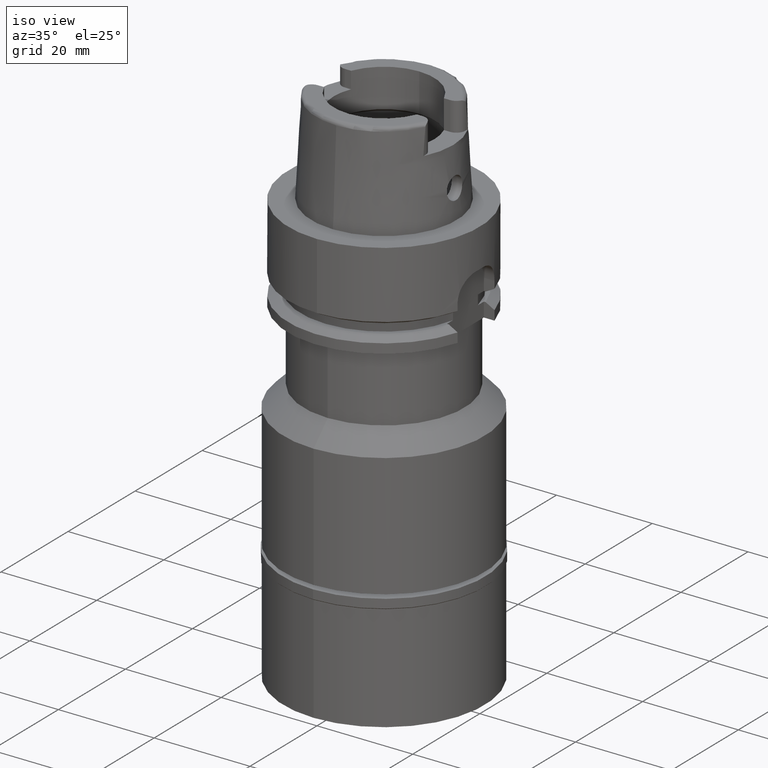
[diagram: clean part render]
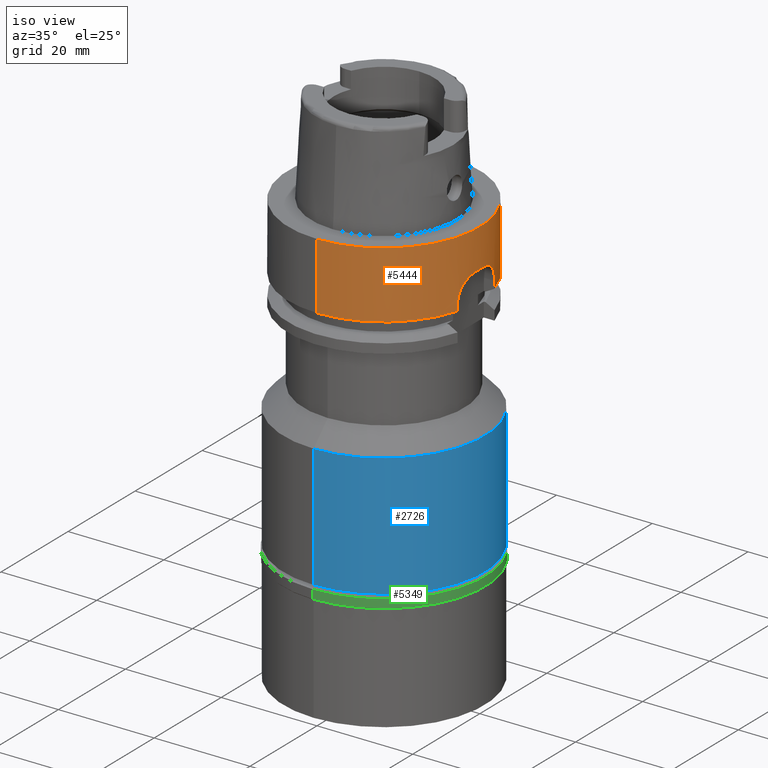
[diagram: same view with three faces highlighted in distinct colors, each labeled with its STEP entity id]
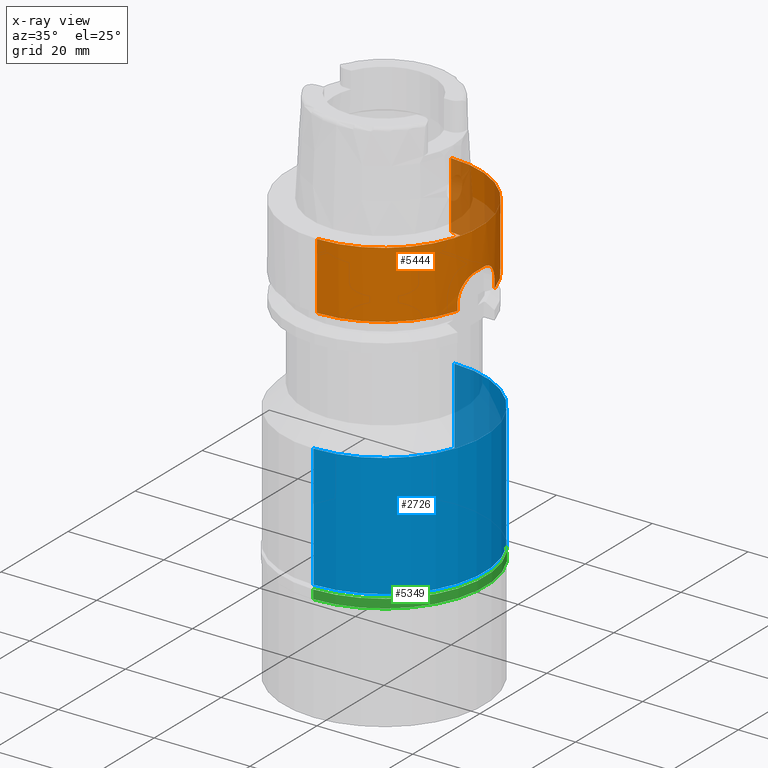
[diagram: x-ray of the same camera — body ghosted, the three highlighted faces saturated]
A machine part, iso view with three faces highlighted in distinct colors.
The next image is the same camera in x-ray (body ghosted, the three faces saturated) — at least one of them is partly hidden behind the body in this view.
Their STEP definitions:

[orange] entity #5444 — the highlighted cylindrical surface (partial cylindrical patch) has radius 20 mm, axis along (0, 0, -1).
#20 = ORIENTED_EDGE ( 'NONE', *, *, #4726, .T. ) ;
#23 = CARTESIAN_POINT ( 'NONE',  ( 19.63064394760038667, -3.824976937558564494, -8.995569033277099891 ) ) ;
#104 = CARTESIAN_POINT ( 'NONE',  ( 19.56078668876510562, -4.168450488739759763, -9.304543760809538711 ) ) ;
#129 = CARTESIAN_POINT ( 'NONE',  ( 19.52053442687796192, 4.353765221726480839, -9.499310411724806613 ) ) ;
#162 = CARTESIAN_POINT ( 'NONE',  ( 19.22888452303000051, -5.499999999998999911, -13.97927405783999966 ) ) ;
#173 = CARTESIAN_POINT ( 'NONE',  ( 19.22888455220999759, 5.499999897977000174, -13.97927491279000023 ) ) ;
#187 = CARTESIAN_POINT ( 'NONE',  ( 19.28663469832160260, 5.295105913696593447, -11.15552064463064141 ) ) ;
#208 = LINE ( 'NONE', #2221, #5154 ) ;
#216 = CARTESIAN_POINT ( 'NONE',  ( 19.50142593040706274, 4.439542253001699024, -9.597059118687226942 ) ) ;
#243 = ORIENTED_EDGE ( 'NONE', *, *, #4954, .T. ) ;
#246 = CARTESIAN_POINT ( 'NONE',  ( 19.22888452303000051, -5.500000000000000000, -12.50000000000000000 ) ) ;
#369 = EDGE_LOOP ( 'NONE', ( #243, #4584, #5180, #1308, #2807, #593, #20, #1997, #2259, #5119 ) ) ;
#407 = CARTESIAN_POINT ( 'NONE',  ( 19.73895532437406430, -3.221284057039203397, -8.585652795197548315 ) ) ;
#419 = VERTEX_POINT ( 'NONE', #173 ) ;
#434 = CARTESIAN_POINT ( 'NONE',  ( 19.56731345558588586, -4.137688151839789441, -9.274255797029949733 ) ) ;
#463 = CARTESIAN_POINT ( 'NONE',  ( 19.33346370639426226, -5.120735699993245404, -10.69140906420430959 ) ) ;
#493 = VERTEX_POINT ( 'NONE', #5435 ) ;
#500 = B_SPLINE_CURVE_WITH_KNOTS ( 'NONE', 3,
 ( #2772, #2352, #1941, #4040, #1311, #934, #521, #5077, #1761, #4259, #3778, #3374, #4639, #1704, #4225, #407, #3811, #1282, #906, #5130, #3456, #5100, #4721, #1792, #2623, #5449, #4198, #3401, #23, #1338, #2969, #5051, #3035, #434, #4662, #104, #3483, #4312, #1256, #1673, #5157, #876, #2567, #2205, #3006, #463, #849, #3898, #2947, #1364, #3061, #2535, #2122, #820 ),
 .UNSPECIFIED., .F., .F.,
 ( 4, 2, 2, 1, 1, 1, 2, 2, 2, 2, 1, 1, 1, 1, 1, 2, 2, 2, 2, 2, 1, 1, 1, 2, 2, 2, 2, 2, 1, 1, 1, 2, 2, 4 ),
 ( 0.0000000000000000000, 0.1249999999996497801, 0.1874999999994746147, 0.2187499999993869626, 0.2343749999993431088, 0.2421874999993213207, 0.2460937499993104127, 0.2499999999992995325, 0.3124999999991240340, 0.3437499999990363819, 0.3593749999989926946, 0.3671874999989708233, 0.3710937499989597210, 0.3730468749989540034, 0.3740234374989512833, 0.3745117187489498400, 0.3749999999989483412, 0.4374999999990539790, 0.4687499999991068256, 0.4843749999991334154, 0.4921874999991467936, 0.4960937499991536215, 0.4980468749991569521, 0.4990234374991585065, 0.4999999999991601163, 0.6249999999993552935, 0.6874999999994531041, 0.7187499999995017319, 0.7343749999995256017, 0.7421874999995374811, 0.7460937499995439204, 0.7480468749995474731, 0.7499999999995511368, 1.000000000000000000 ),
 .UNSPECIFIED. ) ;
#521 = CARTESIAN_POINT ( 'NONE',  ( 19.84851072774394964, -2.457405216439478846, -8.241312961659630787 ) ) ;
#572 = CARTESIAN_POINT ( 'NONE',  ( 19.31465255680291904, 5.191230033021059675, -10.86163901158592004 ) ) ;
#593 = ORIENTED_EDGE ( 'NONE', *, *, #3031, .T. ) ;
#597 = CARTESIAN_POINT ( 'NONE',  ( 19.73156136722484888, 3.271312546290442214, -8.612418166209161896 ) ) ;
#624 = CARTESIAN_POINT ( 'NONE',  ( 19.31936919709609413, 5.173565336899266676, -10.81733093384379174 ) ) ;
#646 = DIRECTION ( 'NONE',  ( 0.9614442261514726251, 0.2749999999999924727, 0.0000000000000000000 ) ) ;
#682 = CARTESIAN_POINT ( 'NONE',  ( 19.22888455220999759, 5.499999897977000174, -13.97927491279000023 ) ) ;
#753 = AXIS2_PLACEMENT_3D ( 'NONE', #1921, #1141, #2408 ) ;
#755 = CARTESIAN_POINT ( 'NONE',  ( 19.89318047508240284, 2.146238498718757270, -8.101944124081882137 ) ) ;
#820 = CARTESIAN_POINT ( 'NONE',  ( 19.22888452303000051, -5.500000000000000000, -12.50000000000000000 ) ) ;
#849 = CARTESIAN_POINT ( 'NONE',  ( 19.32817306023310877, -5.140566403616212199, -10.73759747572987422 ) ) ;
#876 = CARTESIAN_POINT ( 'NONE',  ( 19.37871462058813066, -4.949342529038438521, -10.33909566509531430 ) ) ;
#906 = CARTESIAN_POINT ( 'NONE',  ( 19.70286275662721565, -3.434780831019203173, -8.715480651281001911 ) ) ;
#934 = CARTESIAN_POINT ( 'NONE',  ( 19.86155045042391265, -2.348188506589994784, -8.206034764496743961 ) ) ;
#986 = CARTESIAN_POINT ( 'NONE',  ( 19.23658454640221294, 5.474660854080744876, -11.94154979018197338 ) ) ;
#1012 = CARTESIAN_POINT ( 'NONE',  ( 19.45402416962919645, 4.645537953001118048, -9.856678750557277269 ) ) ;
#1064 = CARTESIAN_POINT ( 'NONE',  ( 19.25968461651885733, 5.392910415939853763, -11.51336319929812468 ) ) ;
#1066 = CYLINDRICAL_SURFACE ( 'NONE', #753, 20.00000000000000000 ) ;
#1096 = LINE ( 'NONE', #682, #1492 ) ;
#1141 = DIRECTION ( 'NONE',  ( 0.0000000000000000000, 0.0000000000000000000, -1.000000000000000000 ) ) ;
#1256 = CARTESIAN_POINT ( 'NONE',  ( 19.50243034717293966, -4.441498029874455078, -9.577354834586829568 ) ) ;
#1282 = CARTESIAN_POINT ( 'NONE',  ( 19.71332632635418136, -3.374393332475727814, -8.677022816150625317 ) ) ;
#1308 = ORIENTED_EDGE ( 'NONE', *, *, #2606, .T. ) ;
#1311 = CARTESIAN_POINT ( 'NONE',  ( 19.88640778754138694, -2.130037156349979810, -8.141558214531716686 ) ) ;
#1338 = CARTESIAN_POINT ( 'NONE',  ( 19.60630030819194403, -3.947932666105484323, -9.099621231292864820 ) ) ;
#1364 = CARTESIAN_POINT ( 'NONE',  ( 19.32381787218638536, -5.156912517073449997, -10.77660492449453855 ) ) ;
#1415 = CARTESIAN_POINT ( 'NONE',  ( 19.30823085762336078, 5.215214264575658731, -10.92377104178881808 ) ) ;
#1451 = CARTESIAN_POINT ( 'NONE',  ( 0.0000000000000000000, 1.532339307432999848E-14, -8.000000000000000000 ) ) ;
#1473 = CARTESIAN_POINT ( 'NONE',  ( 19.79266068958955671, 2.872814981997105388, -8.408059249508253785 ) ) ;
#1492 = VECTOR ( 'NONE', #2363, 1000.000000000000227 ) ;
#1499 = CARTESIAN_POINT ( 'NONE',  ( 19.31794236171047885, 5.178913504021632974, -10.83061647130119631 ) ) ;
#1568 = VERTEX_POINT ( 'NONE', #4167 ) ;
#1600 = CARTESIAN_POINT ( 'NONE',  ( 19.97498435543999662, 1.000000000000000000, -8.000000000000000000 ) ) ;
#1673 = CARTESIAN_POINT ( 'NONE',  ( 19.45499076636983560, -4.644027424695566175, -9.843214420856865488 ) ) ;
#1704 = CARTESIAN_POINT ( 'NONE',  ( 19.78050042100995398, -2.957517143739752719, -8.445362508893781595 ) ) ;
#1749 = VERTEX_POINT ( 'NONE', #246 ) ;
#1761 = CARTESIAN_POINT ( 'NONE',  ( 19.82381985980778794, -2.648343888950041691, -8.312682143098061971 ) ) ;
#1792 = CARTESIAN_POINT ( 'NONE',  ( 19.69255577653850509, -3.493325089396456029, -8.753891125187561073 ) ) ;
#1810 = EDGE_CURVE ( 'NONE', #419, #2360, #1096, .T. ) ;
#1815 = CARTESIAN_POINT ( 'NONE',  ( 19.54706758414766909, 4.232361528598486800, -9.369190671418325067 ) ) ;
#1840 = CARTESIAN_POINT ( 'NONE',  ( 19.34380695559619667, 5.081862356126861435, -10.59253311243774753 ) ) ;
#1858 = AXIS2_PLACEMENT_3D ( 'NONE', #3693, #3307, #4568 ) ;
#1898 = CARTESIAN_POINT ( 'NONE',  ( 19.55047447292268714, 4.216571673563181299, -9.352970484356946557 ) ) ;
#1921 = CARTESIAN_POINT ( 'NONE',  ( 0.0000000000000000000, 1.532339307432999848E-14, 25.12500000000000000 ) ) ;
#1941 = CARTESIAN_POINT ( 'NONE',  ( 19.94128767625852916, -1.553696544724118001, -8.024613320675758388 ) ) ;
#1997 = ORIENTED_EDGE ( 'NONE', *, *, #3581, .T. ) ;
#2120 = AXIS2_PLACEMENT_3D ( 'NONE', #5376, #4976, #5401 ) ;
#2122 = CARTESIAN_POINT ( 'NONE',  ( 19.22888452303000051, -5.500000000000000000, -11.94434606110780983 ) ) ;
#2205 = CARTESIAN_POINT ( 'NONE',  ( 19.34832780429083954, -5.064939329106977084, -10.56870436402436830 ) ) ;
#2221 = CARTESIAN_POINT ( 'NONE',  ( 0.0000000000000000000, -20.00000000000000000, 0.0000000000000000000 ) ) ;
#2228 = CARTESIAN_POINT ( 'NONE',  ( 0.0000000000000000000, -20.00000000000000000, -13.97927405783999966 ) ) ;
#2255 = CARTESIAN_POINT ( 'NONE',  ( 19.32032418046355104, 5.169984398367908796, -10.80847615301045472 ) ) ;
#2257 = CIRCLE ( 'NONE', #3494, 20.00000000000000355 ) ;
#2259 = ORIENTED_EDGE ( 'NONE', *, *, #4892, .F. ) ;
#2281 = CARTESIAN_POINT ( 'NONE',  ( 19.71012153021938929, 3.397762175207944768, -8.689193312161622273 ) ) ;
#2290 = LINE ( 'NONE', #4862, #4638 ) ;
#2293 = VERTEX_POINT ( 'NONE', #2228 ) ;
#2310 = CARTESIAN_POINT ( 'NONE',  ( 19.54198105163120047, 4.255882633056253361, -9.393536465122442891 ) ) ;
#2344 = DIRECTION ( 'NONE',  ( -9.332677126753392931E-08, -3.262833275317140594E-07, -0.9999999999999423794 ) ) ;
#2352 = CARTESIAN_POINT ( 'NONE',  ( 19.96139497116244499, -1.271447738300869545, -7.999999999999998224 ) ) ;
#2359 = EDGE_CURVE ( 'NONE', #2360, #1568, #3398, .T. ) ;
#2360 = VERTEX_POINT ( 'NONE', #5331 ) ;
#2363 = DIRECTION ( 'NONE',  ( -1.972623627107989467E-08, 6.896812003880961806E-08, 0.9999999999999973355 ) ) ;
#2408 = DIRECTION ( 'NONE',  ( 0.0000000000000000000, -1.000000000000000000, 0.0000000000000000000 ) ) ;
#2535 = CARTESIAN_POINT ( 'NONE',  ( 19.26029251281642019, -5.395656231037307293, -11.35498875609509462 ) ) ;
#2567 = CARTESIAN_POINT ( 'NONE',  ( 19.35553694553548709, -5.037750810770325494, -10.51234513076490629 ) ) ;
#2606 = EDGE_CURVE ( 'NONE', #419, #3538, #3629, .T. ) ;
#2623 = CARTESIAN_POINT ( 'NONE',  ( 19.69218632689502257, -3.495406580190014267, -8.755277578795496396 ) ) ;
#2690 = EDGE_CURVE ( 'NONE', #2917, #1749, #500, .T. ) ;
#2701 = CARTESIAN_POINT ( 'NONE',  ( 19.57622255506896991, 4.096717591863995089, -9.231638431952672974 ) ) ;
#2749 = CARTESIAN_POINT ( 'NONE',  ( 0.0000000000000000000, 1.047199923064999921E-14, -13.97927405783999966 ) ) ;
#2753 = CARTESIAN_POINT ( 'NONE',  ( 19.53027908028184356, 4.309626506834646875, -9.450435772372642873 ) ) ;
#2772 = CARTESIAN_POINT ( 'NONE',  ( 19.97498435543999662, -1.000000000000000000, -8.000000000000000000 ) ) ;
#2807 = ORIENTED_EDGE ( 'NONE', *, *, #3515, .F. ) ;
#2917 = VERTEX_POINT ( 'NONE', #4831 ) ;
#2947 = CARTESIAN_POINT ( 'NONE',  ( 19.32453330765275368, -5.154225458029572771, -10.77013783649177370 ) ) ;
#2969 = CARTESIAN_POINT ( 'NONE',  ( 19.59755329165284365, -3.991492605970390350, -9.137735594783938708 ) ) ;
#3006 = CARTESIAN_POINT ( 'NONE',  ( 19.33828921808322931, -5.102649160089053559, -10.65089791657264762 ) ) ;
#3031 = EDGE_CURVE ( 'NONE', #493, #4221, #4768, .T. ) ;
#3035 = CARTESIAN_POINT ( 'NONE',  ( 19.57621227050713841, -4.095335981823143179, -9.233376359453187021 ) ) ;
#3061 = CARTESIAN_POINT ( 'NONE',  ( 19.32359924222965830, -5.157733724682834087, -10.77858382672700976 ) ) ;
#3137 = CARTESIAN_POINT ( 'NONE',  ( 19.22888452303000051, 5.500000000000000000, -12.50000000000000000 ) ) ;
#3162 = CARTESIAN_POINT ( 'NONE',  ( 19.80244722007730118, 2.804145672532197153, -8.377322053008374070 ) ) ;
#3174 = CIRCLE ( 'NONE', #2120, 20.00000000000000000 ) ;
#3297 = LINE ( 'NONE', #3683, #4855 ) ;
#3307 = DIRECTION ( 'NONE',  ( 0.0000000000000000000, 0.0000000000000000000, -1.000000000000000000 ) ) ;
#3321 = DIRECTION ( 'NONE',  ( 0.0000000000000000000, -4.574547001069000145E-14, -1.000000000000000000 ) ) ;
#3374 = CARTESIAN_POINT ( 'NONE',  ( 19.81625301537056316, -2.704420886943549540, -8.335265361555626029 ) ) ;
#3398 = B_SPLINE_CURVE_WITH_KNOTS ( 'NONE', 3,
 ( #3137, #4773, #986, #1064, #4361, #187, #4414, #1415, #572, #1499, #624, #2255, #4442, #1840, #4798, #3996, #1012, #3921, #216, #129, #2753, #2310, #1815, #1898, #5178, #2701, #3586, #3530, #4389, #2281, #597, #3966, #5261, #1473, #3162, #4853, #755, #4983, #1600 ),
 .UNSPECIFIED., .F., .F.,
 ( 4, 2, 2, 1, 1, 1, 1, 2, 2, 2, 2, 2, 1, 1, 2, 2, 2, 2, 2, 1, 2, 2, 4 ),
 ( 0.0000000000000000000, 0.1250000000000028033, 0.1875000000000046074, 0.2187500000000054956, 0.2343750000000059952, 0.2421875000000058842, 0.2460937500000061340, 0.2480468750000065226, 0.2500000000000069389, 0.3750000000000014433, 0.4374999999999991673, 0.4687499999999979461, 0.4843749999999976130, 0.4921874999999971134, 0.4960937499999968359, 0.4999999999999966138, 0.5624999999999973355, 0.6249999999999978906, 0.6874999999999985567, 0.7187499999999987788, 0.7343749999999987788, 0.7499999999999987788, 1.000000000000000000 ),
 .UNSPECIFIED. ) ;
#3401 = CARTESIAN_POINT ( 'NONE',  ( 19.64434316026089533, -3.753364497583749237, -8.939880111897672066 ) ) ;
#3456 = CARTESIAN_POINT ( 'NONE',  ( 19.69486462528723791, -3.480290084616885160, -8.745241877268689734 ) ) ;
#3483 = CARTESIAN_POINT ( 'NONE',  ( 19.55946601776645721, -4.174647431070566128, -9.310700270502394460 ) ) ;
#3494 = AXIS2_PLACEMENT_3D ( 'NONE', #1451, #4031, #5271 ) ;
#3515 = EDGE_CURVE ( 'NONE', #493, #3538, #3297, .T. ) ;
#3530 = CARTESIAN_POINT ( 'NONE',  ( 19.64322700995584725, 3.760156515082951678, -8.942840572103223806 ) ) ;
#3538 = VERTEX_POINT ( 'NONE', #4614 ) ;
#3581 = EDGE_CURVE ( 'NONE', #2293, #3815, #3174, .T. ) ;
#3586 = CARTESIAN_POINT ( 'NONE',  ( 19.59855040313644636, 3.987633760328653132, -9.131633675299811514 ) ) ;
#3629 = CIRCLE ( 'NONE', #4778, 20.00000000000000355 ) ;
#3683 = CARTESIAN_POINT ( 'NONE',  ( 0.0000000000000000000, 20.00000000000000000, 0.0000000000000000000 ) ) ;
#3693 = CARTESIAN_POINT ( 'NONE',  ( 0.0000000000000000000, 1.532339307432999848E-14, 0.0000000000000000000 ) ) ;
#3778 = CARTESIAN_POINT ( 'NONE',  ( 19.81770557128518817, -2.693738785038907846, -8.330906002294803159 ) ) ;
#3811 = CARTESIAN_POINT ( 'NONE',  ( 19.72200033329774982, -3.323108481411421344, -8.645817699038531146 ) ) ;
#3815 = VERTEX_POINT ( 'NONE', #162 ) ;
#3898 = CARTESIAN_POINT ( 'NONE',  ( 19.32561251652150247, -5.150173324775861872, -10.76041730665948393 ) ) ;
#3921 = CARTESIAN_POINT ( 'NONE',  ( 19.48919467987568410, 4.493392015007685814, -9.662221682704531744 ) ) ;
#3966 = CARTESIAN_POINT ( 'NONE',  ( 19.76260105711506299, 3.074924970345644049, -8.506226763225614107 ) ) ;
#3996 = CARTESIAN_POINT ( 'NONE',  ( 19.43260815126173924, 4.734422932862177191, -9.984905843007744863 ) ) ;
#4031 = DIRECTION ( 'NONE',  ( 0.0000000000000000000, 0.0000000000000000000, 1.000000000000000000 ) ) ;
#4040 = CARTESIAN_POINT ( 'NONE',  ( 19.90134986796311267, -1.984987916222135995, -8.106685163435878749 ) ) ;
#4167 = CARTESIAN_POINT ( 'NONE',  ( 19.97498435543999662, 1.000000000000000000, -8.000000000000000000 ) ) ;
#4198 = CARTESIAN_POINT ( 'NONE',  ( 19.67785115740708690, -3.575650279462502468, -8.807046664961740490 ) ) ;
#4221 = VERTEX_POINT ( 'NONE', #5234 ) ;
#4225 = CARTESIAN_POINT ( 'NONE',  ( 19.74973462134385471, -3.154397349896456593, -8.548536765090823053 ) ) ;
#4259 = CARTESIAN_POINT ( 'NONE',  ( 19.82015892487074282, -2.675583637691062666, -8.323576253928663959 ) ) ;
#4312 = CARTESIAN_POINT ( 'NONE',  ( 19.55857315053914292, -4.178829359049777814, -9.314870145129603429 ) ) ;
#4361 = CARTESIAN_POINT ( 'NONE',  ( 19.26930964573411487, 5.358382645654690357, -11.37007128472655459 ) ) ;
#4389 = CARTESIAN_POINT ( 'NONE',  ( 19.66574843538452555, 3.640817669666359002, -8.853413500750383136 ) ) ;
#4414 = CARTESIAN_POINT ( 'NONE',  ( 19.29601910180648616, 5.260598097705189602, -11.04834435503104295 ) ) ;
#4436 = DIRECTION ( 'NONE',  ( 0.0000000000000000000, 0.0000000000000000000, 1.000000000000000000 ) ) ;
#4442 = CARTESIAN_POINT ( 'NONE',  ( 19.32093289487000831, 5.167700803224152928, -10.80286057460964955 ) ) ;
#4568 = DIRECTION ( 'NONE',  ( 0.0000000000000000000, 1.000000000000000000, 0.0000000000000000000 ) ) ;
#4584 = ORIENTED_EDGE ( 'NONE', *, *, #2359, .F. ) ;
#4614 = CARTESIAN_POINT ( 'NONE',  ( 0.0000000000000000000, 20.00000000000000000, -13.97927405783999966 ) ) ;
#4638 = VECTOR ( 'NONE', #2344, 1000.000000000000114 ) ;
#4639 = CARTESIAN_POINT ( 'NONE',  ( 19.79891483246299089, -2.831338609659221461, -8.387472549054711735 ) ) ;
#4662 = CARTESIAN_POINT ( 'NONE',  ( 19.56276028350445628, -4.159176365763300964, -9.295357038161338181 ) ) ;
#4721 = CARTESIAN_POINT ( 'NONE',  ( 19.69294124567170812, -3.491151711779311828, -8.752445483750591393 ) ) ;
#4726 = EDGE_CURVE ( 'NONE', #4221, #2293, #208, .T. ) ;
#4768 = CIRCLE ( 'NONE', #1858, 20.00000000000000000 ) ;
#4773 = CARTESIAN_POINT ( 'NONE',  ( 19.22888452303000406, 5.500000000000000888, -12.22465747466917385 ) ) ;
#4778 = AXIS2_PLACEMENT_3D ( 'NONE', #2749, #4436, #646 ) ;
#4798 = CARTESIAN_POINT ( 'NONE',  ( 19.37445306154994640, 4.968718896072298996, -10.35856978538809514 ) ) ;
#4831 = CARTESIAN_POINT ( 'NONE',  ( 19.97498435543999662, -1.000000000000000000, -8.000000000000000000 ) ) ;
#4844 = DIRECTION ( 'NONE',  ( 0.0000000000000000000, 4.549132851063000272E-14, -1.000000000000000000 ) ) ;
#4853 = CARTESIAN_POINT ( 'NONE',  ( 19.80702582156784430, 2.771501254339705511, -8.363168820820975569 ) ) ;
#4854 = FACE_OUTER_BOUND ( 'NONE', #369, .T. ) ;
#4855 = VECTOR ( 'NONE', #3321, 1000.000000000000000 ) ;
#4862 = CARTESIAN_POINT ( 'NONE',  ( 19.22888452303000051, -5.500000000000000000, -12.50000000000000000 ) ) ;
#4892 = EDGE_CURVE ( 'NONE', #1749, #3815, #2290, .T. ) ;
#4954 = EDGE_CURVE ( 'NONE', #2917, #1568, #2257, .T. ) ;
#4976 = DIRECTION ( 'NONE',  ( 0.0000000000000000000, 0.0000000000000000000, 1.000000000000000000 ) ) ;
#4983 = CARTESIAN_POINT ( 'NONE',  ( 19.94747734610812628, 1.549452080971274626, -7.999999999999998224 ) ) ;
#5051 = CARTESIAN_POINT ( 'NONE',  ( 19.58348406173978873, -4.060166917261001096, -9.200554452026691976 ) ) ;
#5077 = CARTESIAN_POINT ( 'NONE',  ( 19.83222837323853227, -2.584740915280918205, -8.287963799882501092 ) ) ;
#5100 = CARTESIAN_POINT ( 'NONE',  ( 19.69351906556017440, -3.487892151936573537, -8.750279404316835041 ) ) ;
#5119 = ORIENTED_EDGE ( 'NONE', *, *, #2690, .F. ) ;
#5130 = CARTESIAN_POINT ( 'NONE',  ( 19.69754499802387926, -3.465100448350493245, -8.735233290139477802 ) ) ;
#5154 = VECTOR ( 'NONE', #4844, 1000.000000000000000 ) ;
#5157 = CARTESIAN_POINT ( 'NONE',  ( 19.39623340571485244, -4.881279890931645049, -10.21799917186283224 ) ) ;
#5178 = CARTESIAN_POINT ( 'NONE',  ( 19.55251032529842803, 4.207111571717927490, -9.343337093208633704 ) ) ;
#5180 = ORIENTED_EDGE ( 'NONE', *, *, #1810, .F. ) ;
#5234 = CARTESIAN_POINT ( 'NONE',  ( 0.0000000000000000000, -20.00000000000000000, 0.0000000000000000000 ) ) ;
#5261 = CARTESIAN_POINT ( 'NONE',  ( 19.77784088565566734, 2.975054965745149715, -8.455373366363897247 ) ) ;
#5271 = DIRECTION ( 'NONE',  ( 0.9987492177719088371, -0.04999999999999998890, 0.0000000000000000000 ) ) ;
#5331 = CARTESIAN_POINT ( 'NONE',  ( 19.22888452303000051, 5.500000000000000000, -12.50000000000000000 ) ) ;
#5376 = CARTESIAN_POINT ( 'NONE',  ( 0.0000000000000000000, 1.047199923064999921E-14, -13.97927405783999966 ) ) ;
#5401 = DIRECTION ( 'NONE',  ( 0.0000000000000000000, -1.000000000000000000, 0.0000000000000000000 ) ) ;
#5435 = CARTESIAN_POINT ( 'NONE',  ( 0.0000000000000000000, 20.00000000000000000, 0.0000000000000000000 ) ) ;
#5444 = ADVANCED_FACE ( 'NONE', ( #4854 ), #1066, .T. ) ;
#5449 = CARTESIAN_POINT ( 'NONE',  ( 19.69007030105741762, -3.507325168322622311, -8.763220307291023303 ) ) ;

[blue] entity #2726 — the highlighted cylindrical surface (partial cylindrical patch) has radius 21 mm, axis along (0, 0, -1).
#73 = CYLINDRICAL_SURFACE ( 'NONE', #2571, 21.00000000000000000 ) ;
#487 = LINE ( 'NONE', #3447, #2983 ) ;
#494 = VECTOR ( 'NONE', #4774, 1000.000000000000000 ) ;
#589 = ORIENTED_EDGE ( 'NONE', *, *, #707, .F. ) ;
#628 = EDGE_LOOP ( 'NONE', ( #2967, #2409, #3312, #589 ) ) ;
#668 = DIRECTION ( 'NONE',  ( 0.0000000000000000000, -1.000000000000000000, 0.0000000000000000000 ) ) ;
#707 = EDGE_CURVE ( 'NONE', #2641, #3263, #487, .T. ) ;
#909 = DIRECTION ( 'NONE',  ( 0.0000000000000000000, 0.0000000000000000000, -1.000000000000000000 ) ) ;
#1039 = DIRECTION ( 'NONE',  ( 0.0000000000000000000, 0.0000000000000000000, -1.000000000000000000 ) ) ;
#1314 = CARTESIAN_POINT ( 'NONE',  ( 0.0000000000000000000, 0.0000000000000000000, -39.19999999999999574 ) ) ;
#1844 = DIRECTION ( 'NONE',  ( 0.0000000000000000000, -1.000000000000000000, 0.0000000000000000000 ) ) ;
#2059 = CARTESIAN_POINT ( 'NONE',  ( 0.0000000000000000000, -21.00000000000000000, -64.90000000000000568 ) ) ;
#2260 = CARTESIAN_POINT ( 'NONE',  ( 0.0000000000000000000, 1.532339307432999848E-14, 25.12500000000000000 ) ) ;
#2299 = AXIS2_PLACEMENT_3D ( 'NONE', #4434, #5323, #668 ) ;
#2409 = ORIENTED_EDGE ( 'NONE', *, *, #5420, .T. ) ;
#2571 = AXIS2_PLACEMENT_3D ( 'NONE', #2260, #1039, #1844 ) ;
#2588 = DIRECTION ( 'NONE',  ( 0.0000000000000000000, 0.0000000000000000000, -1.000000000000000000 ) ) ;
#2641 = VERTEX_POINT ( 'NONE', #2720 ) ;
#2720 = CARTESIAN_POINT ( 'NONE',  ( 0.0000000000000000000, 21.00000000000000000, -39.19999999999999574 ) ) ;
#2726 = ADVANCED_FACE ( 'NONE', ( #3866 ), #73, .T. ) ;
#2754 = LINE ( 'NONE', #3192, #494 ) ;
#2967 = ORIENTED_EDGE ( 'NONE', *, *, #4863, .T. ) ;
#2983 = VECTOR ( 'NONE', #2588, 1000.000000000000000 ) ;
#3192 = CARTESIAN_POINT ( 'NONE',  ( 0.0000000000000000000, -21.00000000000000000, -39.19999999999999574 ) ) ;
#3263 = VERTEX_POINT ( 'NONE', #3520 ) ;
#3312 = ORIENTED_EDGE ( 'NONE', *, *, #3411, .T. ) ;
#3411 = EDGE_CURVE ( 'NONE', #5127, #3263, #3621, .T. ) ;
#3447 = CARTESIAN_POINT ( 'NONE',  ( 0.0000000000000000000, 21.00000000000000000, -39.19999999999999574 ) ) ;
#3520 = CARTESIAN_POINT ( 'NONE',  ( 0.0000000000000000000, 21.00000000000000000, -64.90000000000000568 ) ) ;
#3621 = CIRCLE ( 'NONE', #2299, 21.00000000000000000 ) ;
#3750 = CIRCLE ( 'NONE', #5325, 21.00000000000000000 ) ;
#3866 = FACE_OUTER_BOUND ( 'NONE', #628, .T. ) ;
#3995 = CARTESIAN_POINT ( 'NONE',  ( 0.0000000000000000000, -21.00000000000000000, -39.19999999999999574 ) ) ;
#4222 = VERTEX_POINT ( 'NONE', #3995 ) ;
#4289 = DIRECTION ( 'NONE',  ( 0.0000000000000000000, 1.000000000000000000, 0.0000000000000000000 ) ) ;
#4434 = CARTESIAN_POINT ( 'NONE',  ( 0.0000000000000000000, 1.532339307432999848E-14, -64.90000000000000568 ) ) ;
#4774 = DIRECTION ( 'NONE',  ( 0.0000000000000000000, 0.0000000000000000000, -1.000000000000000000 ) ) ;
#4863 = EDGE_CURVE ( 'NONE', #2641, #4222, #3750, .T. ) ;
#5127 = VERTEX_POINT ( 'NONE', #2059 ) ;
#5323 = DIRECTION ( 'NONE',  ( 0.0000000000000000000, 0.0000000000000000000, 1.000000000000000000 ) ) ;
#5325 = AXIS2_PLACEMENT_3D ( 'NONE', #1314, #909, #4289 ) ;
#5420 = EDGE_CURVE ( 'NONE', #4222, #5127, #2754, .T. ) ;

[green] entity #5349 — the highlighted cylindrical surface (partial cylindrical patch) has radius 21.15 mm, axis along (0, 0, -1).
#398 = AXIS2_PLACEMENT_3D ( 'NONE', #5097, #3057, #930 ) ;
#458 = CYLINDRICAL_SURFACE ( 'NONE', #398, 21.14999999999999858 ) ;
#904 = VERTEX_POINT ( 'NONE', #4016 ) ;
#930 = DIRECTION ( 'NONE',  ( 0.0000000000000000000, -1.000000000000000000, 0.0000000000000000000 ) ) ;
#1022 = DIRECTION ( 'NONE',  ( 0.0000000000000000000, 0.0000000000000000000, 1.000000000000000000 ) ) ;
#1122 = VERTEX_POINT ( 'NONE', #2873 ) ;
#1196 = DIRECTION ( 'NONE',  ( 0.0000000000000000000, 0.0000000000000000000, -1.000000000000000000 ) ) ;
#1304 = DIRECTION ( 'NONE',  ( 0.0000000000000000000, 0.0000000000000000000, -1.000000000000000000 ) ) ;
#1316 = ORIENTED_EDGE ( 'NONE', *, *, #3973, .T. ) ;
#1425 = CARTESIAN_POINT ( 'NONE',  ( 0.0000000000000000000, 0.0000000000000000000, -1.850000000000000089 ) ) ;
#1460 = VECTOR ( 'NONE', #1196, 1000.000000000000000 ) ;
#1671 = AXIS2_PLACEMENT_3D ( 'NONE', #1425, #1022, #5319 ) ;
#1678 = ORIENTED_EDGE ( 'NONE', *, *, #1703, .F. ) ;
#1703 = EDGE_CURVE ( 'NONE', #2704, #5329, #4344, .T. ) ;
#2032 = CARTESIAN_POINT ( 'NONE',  ( 0.0000000000000000000, -21.14999999999999858, 0.0000000000000000000 ) ) ;
#2169 = EDGE_CURVE ( 'NONE', #2704, #904, #3897, .T. ) ;
#2540 = EDGE_LOOP ( 'NONE', ( #3916, #1316, #5047, #1678 ) ) ;
#2566 = AXIS2_PLACEMENT_3D ( 'NONE', #5096, #1304, #2997 ) ;
#2594 = CARTESIAN_POINT ( 'NONE',  ( 0.0000000000000000000, 21.14999999999999858, 0.0000000000000000000 ) ) ;
#2596 = CARTESIAN_POINT ( 'NONE',  ( 0.0000000000000000000, 21.14999999999999858, 0.0000000000000000000 ) ) ;
#2704 = VERTEX_POINT ( 'NONE', #2594 ) ;
#2873 = CARTESIAN_POINT ( 'NONE',  ( 0.0000000000000000000, -21.14999999999999858, -1.850000000000000089 ) ) ;
#2943 = CARTESIAN_POINT ( 'NONE',  ( 0.0000000000000000000, 21.14999999999999858, -1.850000000000000089 ) ) ;
#2997 = DIRECTION ( 'NONE',  ( 0.0000000000000000000, 1.000000000000000000, 0.0000000000000000000 ) ) ;
#3057 = DIRECTION ( 'NONE',  ( 0.0000000000000000000, 0.0000000000000000000, -1.000000000000000000 ) ) ;
#3639 = EDGE_CURVE ( 'NONE', #1122, #5329, #3798, .T. ) ;
#3798 = CIRCLE ( 'NONE', #1671, 21.14999999999999858 ) ;
#3897 = CIRCLE ( 'NONE', #2566, 21.14999999999999858 ) ;
#3916 = ORIENTED_EDGE ( 'NONE', *, *, #2169, .T. ) ;
#3973 = EDGE_CURVE ( 'NONE', #904, #1122, #5416, .T. ) ;
#4016 = CARTESIAN_POINT ( 'NONE',  ( 0.0000000000000000000, -21.14999999999999858, 0.0000000000000000000 ) ) ;
#4058 = VECTOR ( 'NONE', #4288, 1000.000000000000000 ) ;
#4220 = FACE_OUTER_BOUND ( 'NONE', #2540, .T. ) ;
#4288 = DIRECTION ( 'NONE',  ( 0.0000000000000000000, 0.0000000000000000000, -1.000000000000000000 ) ) ;
#4344 = LINE ( 'NONE', #2596, #4058 ) ;
#5047 = ORIENTED_EDGE ( 'NONE', *, *, #3639, .T. ) ;
#5096 = CARTESIAN_POINT ( 'NONE',  ( 0.0000000000000000000, 0.0000000000000000000, 0.0000000000000000000 ) ) ;
#5097 = CARTESIAN_POINT ( 'NONE',  ( 0.0000000000000000000, 0.0000000000000000000, 0.0000000000000000000 ) ) ;
#5319 = DIRECTION ( 'NONE',  ( 0.0000000000000000000, -1.000000000000000000, 0.0000000000000000000 ) ) ;
#5329 = VERTEX_POINT ( 'NONE', #2943 ) ;
#5349 = ADVANCED_FACE ( 'NONE', ( #4220 ), #458, .T. ) ;
#5416 = LINE ( 'NONE', #2032, #1460 ) ;